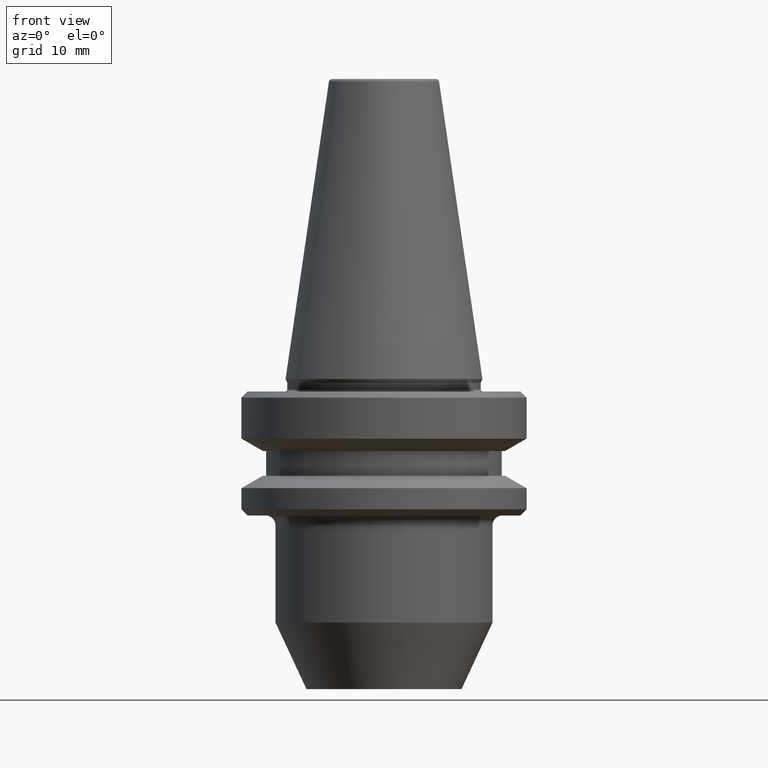
[diagram: clean part render]
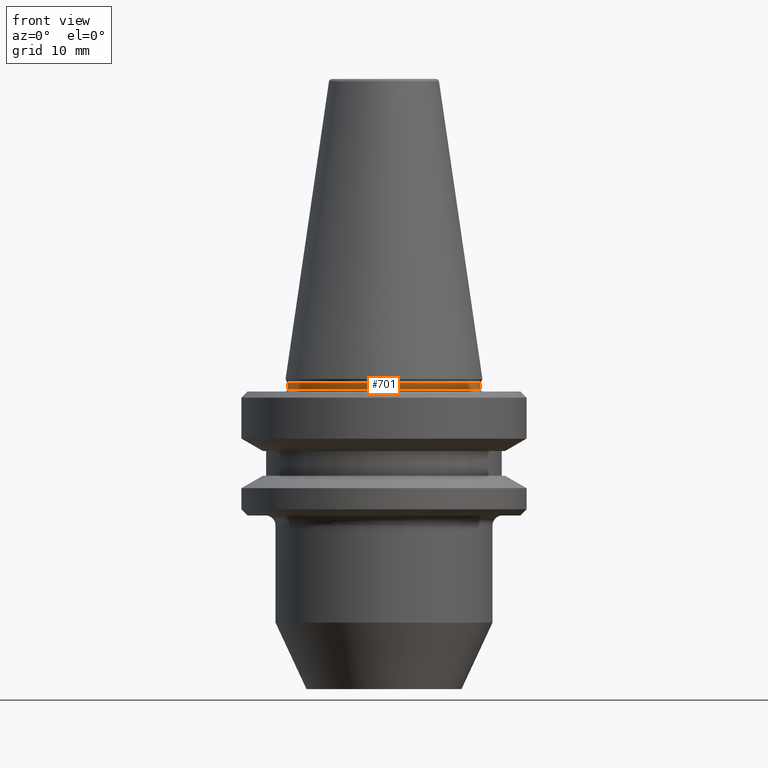
[diagram: same view with one face highlighted and labeled with its STEP entity id]
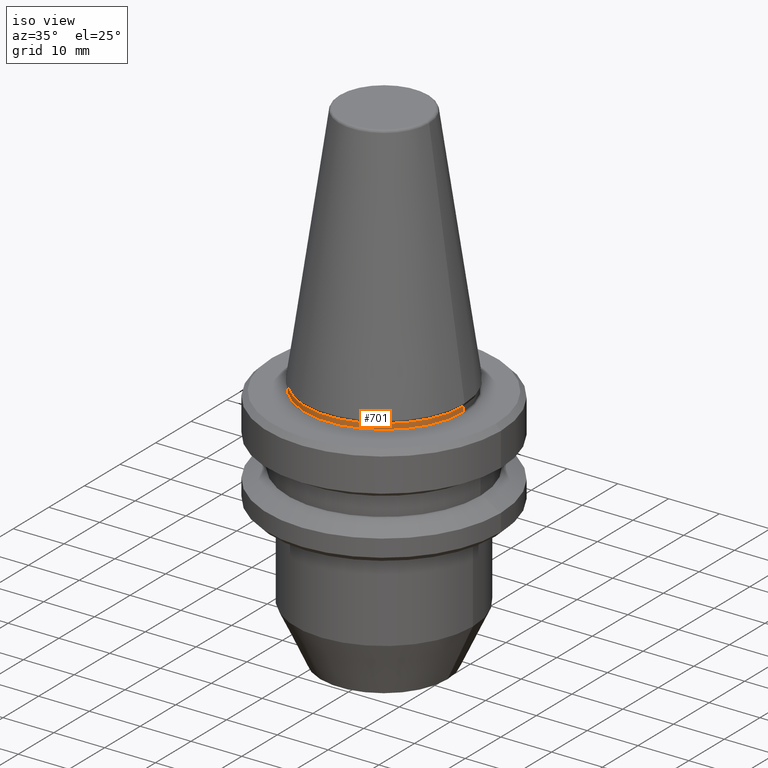
[diagram: same view with one face highlighted and labeled with its STEP entity id]
A machine part, front view. The second image highlights one B-rep face of the part: STEP entity #701.
A second angle (iso view) of the same face is appended — the face is thin or edge-on in the first view.
In plain terms, the highlighted cylindrical surface (partial cylindrical patch) has radius 15.6 mm, axis along (-0, -0, 1).
Its self-contained STEP definition (entity closure, byte-faithful):
#65 = CARTESIAN_POINT ( 'NONE',  ( 15.60000000000028000, 0.0000000000000000000, 106.7296997704041000 ) ) ;
#68 = EDGE_CURVE ( 'NONE', #91, #189, #720, .T. ) ;
#91 = VERTEX_POINT ( 'NONE', #641 ) ;
#115 = VECTOR ( 'NONE', #371, 1000.000000000000000 ) ;
#189 = VERTEX_POINT ( 'NONE', #562 ) ;
#242 = AXIS2_PLACEMENT_3D ( 'NONE', #765, #306, #749 ) ;
#264 = DIRECTION ( 'NONE',  ( 1.000000000000000000, 0.0000000000000000000, 0.0000000000000000000 ) ) ;
#299 = LINE ( 'NONE', #707, #480 ) ;
#306 = DIRECTION ( 'NONE',  ( -0.0000000000000000000, -0.0000000000000000000, 1.000000000000000000 ) ) ;
#315 = ORIENTED_EDGE ( 'NONE', *, *, #640, .T. ) ;
#341 = AXIS2_PLACEMENT_3D ( 'NONE', #874, #515, #264 ) ;
#367 = FACE_OUTER_BOUND ( 'NONE', #589, .T. ) ;
#371 = DIRECTION ( 'NONE',  ( -0.0000000000000000000, -0.0000000000000000000, 1.000000000000000000 ) ) ;
#477 = ORIENTED_EDGE ( 'NONE', *, *, #796, .F. ) ;
#480 = VECTOR ( 'NONE', #821, 1000.000000000000000 ) ;
#494 = DIRECTION ( 'NONE',  ( -0.0000000000000000000, -0.0000000000000000000, 1.000000000000000000 ) ) ;
#515 = DIRECTION ( 'NONE',  ( -0.0000000000000000000, -0.0000000000000000000, 1.000000000000000000 ) ) ;
#517 = CARTESIAN_POINT ( 'NONE',  ( -15.60000000000028000, 1.934941942652869700E-015, -1.600000000000045800 ) ) ;
#527 = CARTESIAN_POINT ( 'NONE',  ( -15.60000000000028000, 1.910449006669905600E-015, -0.5897394031388891700 ) ) ;
#556 = VERTEX_POINT ( 'NONE', #527 ) ;
#562 = CARTESIAN_POINT ( 'NONE',  ( 15.60000000000028000, 0.0000000000000000000, -0.5897394031388891700 ) ) ;
#589 = EDGE_LOOP ( 'NONE', ( #829, #315, #831, #477 ) ) ;
#640 = EDGE_CURVE ( 'NONE', #684, #91, #954, .T. ) ;
#641 = CARTESIAN_POINT ( 'NONE',  ( 15.60000000000028000, 0.0000000000000000000, -1.600000000000045800 ) ) ;
#684 = VERTEX_POINT ( 'NONE', #517 ) ;
#701 = ADVANCED_FACE ( 'NONE', ( #367 ), #724, .T. ) ;
#707 = CARTESIAN_POINT ( 'NONE',  ( -15.60000000000028000, 1.910449006669905600E-015, 106.7296997704041000 ) ) ;
#720 = LINE ( 'NONE', #65, #115 ) ;
#724 = CYLINDRICAL_SURFACE ( 'NONE', #764, 15.60000000000028000 ) ;
#749 = DIRECTION ( 'NONE',  ( 1.000000000000000000, 0.0000000000000000000, 0.0000000000000000000 ) ) ;
#764 = AXIS2_PLACEMENT_3D ( 'NONE', #958, #494, #916 ) ;
#765 = CARTESIAN_POINT ( 'NONE',  ( 0.0000000000000000000, 0.0000000000000000000, -1.600000000000045800 ) ) ;
#796 = EDGE_CURVE ( 'NONE', #556, #189, #891, .T. ) ;
#821 = DIRECTION ( 'NONE',  ( -0.0000000000000000000, -0.0000000000000000000, 1.000000000000000000 ) ) ;
#829 = ORIENTED_EDGE ( 'NONE', *, *, #963, .F. ) ;
#831 = ORIENTED_EDGE ( 'NONE', *, *, #68, .T. ) ;
#874 = CARTESIAN_POINT ( 'NONE',  ( 0.0000000000000000000, 0.0000000000000000000, -0.5897394031388891700 ) ) ;
#891 = CIRCLE ( 'NONE', #341, 15.60000000000028000 ) ;
#916 = DIRECTION ( 'NONE',  ( 1.000000000000000000, 0.0000000000000000000, 0.0000000000000000000 ) ) ;
#954 = CIRCLE ( 'NONE', #242, 15.60000000000028000 ) ;
#958 = CARTESIAN_POINT ( 'NONE',  ( 0.0000000000000000000, 0.0000000000000000000, 106.7296997704041000 ) ) ;
#963 = EDGE_CURVE ( 'NONE', #684, #556, #299, .T. ) ;